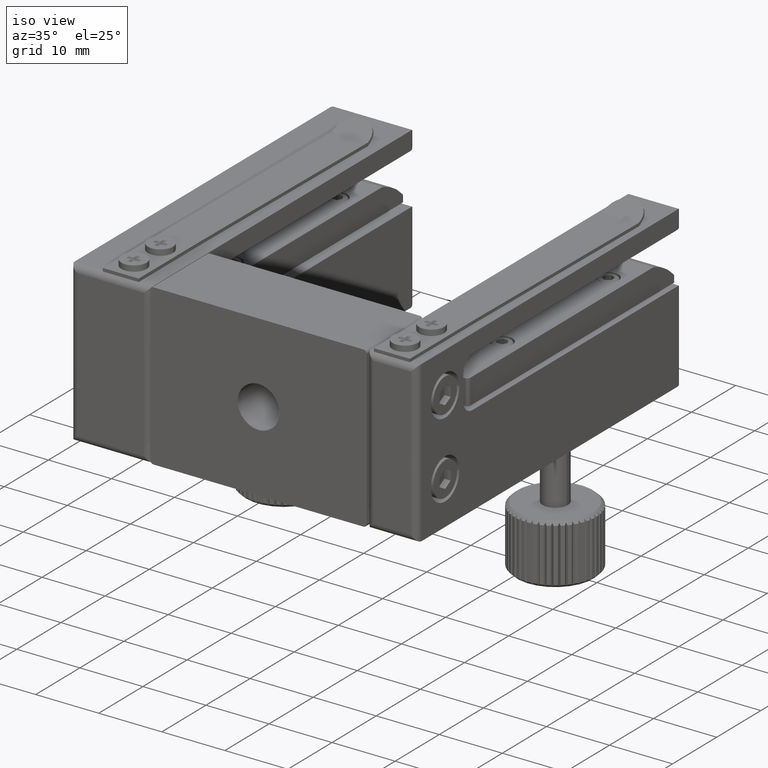
[diagram: clean part render]
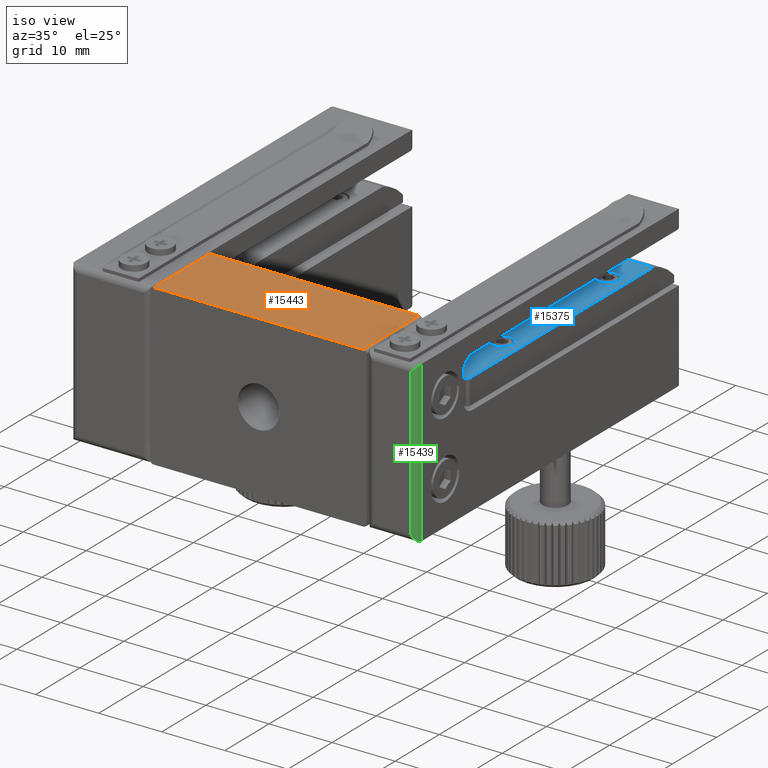
[diagram: same view with three faces highlighted in distinct colors, each labeled with its STEP entity id]
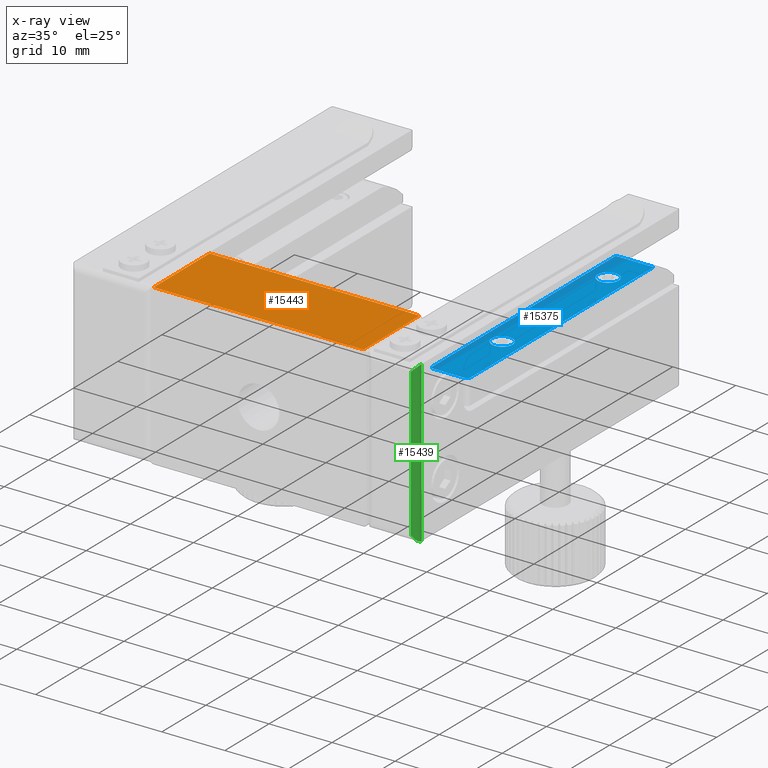
[diagram: x-ray of the same camera — body ghosted, the three highlighted faces saturated]
A machine part, iso view with three faces highlighted in distinct colors.
The next image is the same camera in x-ray (body ghosted, the three faces saturated) — at least one of them is partly hidden behind the body in this view.
Their STEP definitions:

[orange] entity #15443 — the highlighted planar face has unit normal (0, 0, -1).
#2791 = CARTESIAN_POINT ( 'NONE',  ( 10.16750972762645800, -8.836669548926355600, 12.69999999999999900 ) ) ;
#2798 = CARTESIAN_POINT ( 'NONE',  ( -23.13249027237353800, -8.836669548926355600, 12.69999999999999900 ) ) ;
#2803 = CARTESIAN_POINT ( 'NONE',  ( 10.16750972762645800, 3.863330451073643700, 12.69999999999999900 ) ) ;
#2805 = CARTESIAN_POINT ( 'NONE',  ( -23.13249027237353800, 3.863330451073643700, 12.69999999999999900 ) ) ;
#4847 = CARTESIAN_POINT ( 'NONE',  ( -23.13249027237353800, 3.863330451073643700, 12.69999999999999900 ) ) ;
#4851 = CARTESIAN_POINT ( 'NONE',  ( 10.16750972762645800, 3.863330451073643700, 12.69999999999999900 ) ) ;
#4855 = DIRECTION ( 'NONE',  ( 1.000000000000000000, 0.0000000000000000000, 0.0000000000000000000 ) ) ;
#4856 = DIRECTION ( 'NONE',  ( -0.0000000000000000000, -1.000000000000000000, -0.0000000000000000000 ) ) ;
#4992 = LINE ( 'NONE', #4847, #4994 ) ;
#4994 = VECTOR ( 'NONE', #4855, 1000.000000000000000 ) ;
#4995 = LINE ( 'NONE', #4851, #4996 ) ;
#4996 = VECTOR ( 'NONE', #4856, 1000.000000000000000 ) ;
#5771 = LINE ( 'NONE', #8079, #5778 ) ;
#5777 = FACE_OUTER_BOUND ( 'NONE', #12779, .T. ) ;
#5778 = VECTOR ( 'NONE', #8080, 1000.000000000000000 ) ;
#5783 = LINE ( 'NONE', #8078, #5785 ) ;
#5785 = VECTOR ( 'NONE', #8077, 1000.000000000000000 ) ;
#8066 = CARTESIAN_POINT ( 'NONE',  ( -23.13249027237353800, 3.863330451073643700, 12.69999999999999900 ) ) ;
#8071 = PLANE ( 'NONE',  #8426 ) ;
#8073 = DIRECTION ( 'NONE',  ( 0.0000000000000000000, 0.0000000000000000000, -1.000000000000000000 ) ) ;
#8074 = DIRECTION ( 'NONE',  ( -1.000000000000000000, 0.0000000000000000000, -0.0000000000000000000 ) ) ;
#8077 = DIRECTION ( 'NONE',  ( 1.000000000000000000, 0.0000000000000000000, 0.0000000000000000000 ) ) ;
#8078 = CARTESIAN_POINT ( 'NONE',  ( -23.13249027237353800, -8.836669548926355600, 12.69999999999999900 ) ) ;
#8079 = CARTESIAN_POINT ( 'NONE',  ( -23.13249027237353800, 3.863330451073643700, 12.69999999999999900 ) ) ;
#8080 = DIRECTION ( 'NONE',  ( -0.0000000000000000000, -1.000000000000000000, -0.0000000000000000000 ) ) ;
#8426 = AXIS2_PLACEMENT_3D ( 'NONE', #8066, #8073, #8074 ) ;
#9598 = ORIENTED_EDGE ( 'NONE', *, *, #15447, .T. ) ;
#9599 = ORIENTED_EDGE ( 'NONE', *, *, #14852, .F. ) ;
#9600 = ORIENTED_EDGE ( 'NONE', *, *, #14850, .F. ) ;
#9601 = ORIENTED_EDGE ( 'NONE', *, *, #15445, .T. ) ;
#12779 = EDGE_LOOP ( 'NONE', ( #9598, #9599, #9600, #9601 ) ) ;
#13306 = VERTEX_POINT ( 'NONE', #2791 ) ;
#13313 = VERTEX_POINT ( 'NONE', #2798 ) ;
#13318 = VERTEX_POINT ( 'NONE', #2803 ) ;
#13320 = VERTEX_POINT ( 'NONE', #2805 ) ;
#14850 = EDGE_CURVE ( 'NONE', #13320, #13318, #4992, .T. ) ;
#14852 = EDGE_CURVE ( 'NONE', #13318, #13306, #4995, .T. ) ;
#15443 = ADVANCED_FACE ( 'NONE', ( #5777 ), #8071, .F. ) ;
#15445 = EDGE_CURVE ( 'NONE', #13320, #13313, #5771, .T. ) ;
#15447 = EDGE_CURVE ( 'NONE', #13313, #13306, #5783, .T. ) ;

[blue] entity #15375 — the highlighted planar face has unit normal (-0, -0, -1).
#2842 = CARTESIAN_POINT ( 'NONE',  ( 17.66750972762645600, 4.663330451073644400, 5.499999999999991100 ) ) ;
#2850 = CARTESIAN_POINT ( 'NONE',  ( 17.66750972762645600, 46.16333045107364100, 5.499999999999986700 ) ) ;
#2855 = CARTESIAN_POINT ( 'NONE',  ( 11.66750972762645800, 46.16333045107364100, 5.499999999999986700 ) ) ;
#2862 = CARTESIAN_POINT ( 'NONE',  ( 11.66750972762645800, 4.663330451073644400, 5.499999999999991100 ) ) ;
#2863 = CARTESIAN_POINT ( 'NONE',  ( 17.16750972762645600, 4.163330451073643500, 5.499999999999991100 ) ) ;
#2864 = CARTESIAN_POINT ( 'NONE',  ( 12.16750972762645800, 4.163330451073643500, 5.499999999999991100 ) ) ;
#5646 = FACE_OUTER_BOUND ( 'NONE', #12915, .T. ) ;
#5647 = FACE_BOUND ( 'NONE', #12912, .T. ) ;
#5652 = FACE_BOUND ( 'NONE', #12893, .T. ) ;
#5848 = VERTEX_POINT ( 'NONE', #9432 ) ;
#5853 = VERTEX_POINT ( 'NONE', #9359 ) ;
#7827 = DIRECTION ( 'NONE',  ( -0.0000000000000000000, -1.110223024625156500E-016, -1.000000000000000000 ) ) ;
#7828 = CARTESIAN_POINT ( 'NONE',  ( 12.16750972762645800, 4.663330451073644400, 5.499999999999991100 ) ) ;
#7830 = PLANE ( 'NONE',  #8357 ) ;
#7832 = DIRECTION ( 'NONE',  ( -1.000000000000000000, 0.0000000000000000000, 0.0000000000000000000 ) ) ;
#8357 = AXIS2_PLACEMENT_3D ( 'NONE', #7828, #7827, #7832 ) ;
#8480 = EDGE_CURVE ( 'NONE', #13365, #13370, #10091, .T. ) ;
#8489 = EDGE_CURVE ( 'NONE', #13365, #13357, #10100, .T. ) ;
#8492 = EDGE_CURVE ( 'NONE', #13357, #13378, #10112, .T. ) ;
#8495 = EDGE_CURVE ( 'NONE', #13378, #13379, #10117, .T. ) ;
#8498 = EDGE_CURVE ( 'NONE', #13379, #13377, #10122, .T. ) ;
#8502 = EDGE_CURVE ( 'NONE', #5853, #5853, #10130, .T. ) ;
#8508 = EDGE_CURVE ( 'NONE', #5848, #5848, #10133, .T. ) ;
#8509 = EDGE_CURVE ( 'NONE', #13377, #13370, #10138, .T. ) ;
#9359 = CARTESIAN_POINT ( 'NONE',  ( 13.01750972762645900, 40.16333045107364800, 5.499999999999986700 ) ) ;
#9432 = CARTESIAN_POINT ( 'NONE',  ( 13.01750972762645900, 16.16333045107364400, 5.499999999999989300 ) ) ;
#10091 = LINE ( 'NONE', #11016, #10098 ) ;
#10098 = VECTOR ( 'NONE', #11038, 1000.000000000000000 ) ;
#10100 = LINE ( 'NONE', #11072, #10109 ) ;
#10109 = VECTOR ( 'NONE', #11067, 1000.000000000000000 ) ;
#10112 = CIRCLE ( 'NONE', #15730, 0.5000000000000004400 ) ;
#10117 = LINE ( 'NONE', #11084, #10119 ) ;
#10119 = VECTOR ( 'NONE', #11080, 1000.000000000000000 ) ;
#10122 = CIRCLE ( 'NONE', #15732, 0.5000000000000004400 ) ;
#10130 = CIRCLE ( 'NONE', #15735, 1.649999999999998600 ) ;
#10133 = CIRCLE ( 'NONE', #15739, 1.649999999999998600 ) ;
#10138 = LINE ( 'NONE', #11117, #10140 ) ;
#10140 = VECTOR ( 'NONE', #11124, 1000.000000000000000 ) ;
#11016 = CARTESIAN_POINT ( 'NONE',  ( 24.36750972762645500, 46.16333045107364100, 5.499999999999986700 ) ) ;
#11038 = DIRECTION ( 'NONE',  ( -1.000000000000000000, 0.0000000000000000000, 0.0000000000000000000 ) ) ;
#11067 = DIRECTION ( 'NONE',  ( 0.0000000000000000000, -1.000000000000000000, 1.110223024625156500E-016 ) ) ;
#11072 = CARTESIAN_POINT ( 'NONE',  ( 17.66750972762645600, 4.663330451073644400, 5.499999999999991100 ) ) ;
#11080 = DIRECTION ( 'NONE',  ( -1.000000000000000000, 0.0000000000000000000, 0.0000000000000000000 ) ) ;
#11081 = CARTESIAN_POINT ( 'NONE',  ( 17.16750972762645600, 4.663330451073644400, 5.499999999999991100 ) ) ;
#11082 = DIRECTION ( 'NONE',  ( 0.0000000000000000000, -1.110223024625156500E-016, -1.000000000000000000 ) ) ;
#11083 = DIRECTION ( 'NONE',  ( -1.000000000000000000, 0.0000000000000000000, 0.0000000000000000000 ) ) ;
#11084 = CARTESIAN_POINT ( 'NONE',  ( 12.16750972762645800, 4.163330451073643500, 5.499999999999991100 ) ) ;
#11094 = CARTESIAN_POINT ( 'NONE',  ( 12.16750972762645800, 4.663330451073644400, 5.499999999999991100 ) ) ;
#11095 = DIRECTION ( 'NONE',  ( 0.0000000000000000000, -1.110223024625156500E-016, -1.000000000000000000 ) ) ;
#11096 = DIRECTION ( 'NONE',  ( -1.000000000000000000, 0.0000000000000000000, 0.0000000000000000000 ) ) ;
#11104 = CARTESIAN_POINT ( 'NONE',  ( 14.66750972762645800, 40.16333045107364800, 5.499999999999986700 ) ) ;
#11105 = DIRECTION ( 'NONE',  ( 0.0000000000000000000, -1.110223024625156500E-016, -1.000000000000000000 ) ) ;
#11106 = DIRECTION ( 'NONE',  ( -1.000000000000000000, 0.0000000000000000000, 0.0000000000000000000 ) ) ;
#11117 = CARTESIAN_POINT ( 'NONE',  ( 11.66750972762645800, 4.663330451073644400, 5.499999999999991100 ) ) ;
#11121 = CARTESIAN_POINT ( 'NONE',  ( 14.66750972762645800, 16.16333045107364400, 5.499999999999989300 ) ) ;
#11122 = DIRECTION ( 'NONE',  ( 0.0000000000000000000, -1.110223024625156500E-016, -1.000000000000000000 ) ) ;
#11123 = DIRECTION ( 'NONE',  ( -1.000000000000000000, 0.0000000000000000000, 0.0000000000000000000 ) ) ;
#11124 = DIRECTION ( 'NONE',  ( 0.0000000000000000000, 1.000000000000000000, -1.110223024625156500E-016 ) ) ;
#12893 = EDGE_LOOP ( 'NONE', ( #16182 ) ) ;
#12912 = EDGE_LOOP ( 'NONE', ( #16181 ) ) ;
#12915 = EDGE_LOOP ( 'NONE', ( #16183, #16184, #16185, #16186, #16187, #16188 ) ) ;
#13357 = VERTEX_POINT ( 'NONE', #2842 ) ;
#13365 = VERTEX_POINT ( 'NONE', #2850 ) ;
#13370 = VERTEX_POINT ( 'NONE', #2855 ) ;
#13377 = VERTEX_POINT ( 'NONE', #2862 ) ;
#13378 = VERTEX_POINT ( 'NONE', #2863 ) ;
#13379 = VERTEX_POINT ( 'NONE', #2864 ) ;
#15375 = ADVANCED_FACE ( 'NONE', ( #5647, #5652, #5646 ), #7830, .F. ) ;
#15730 = AXIS2_PLACEMENT_3D ( 'NONE', #11081, #11082, #11083 ) ;
#15732 = AXIS2_PLACEMENT_3D ( 'NONE', #11094, #11095, #11096 ) ;
#15735 = AXIS2_PLACEMENT_3D ( 'NONE', #11104, #11105, #11106 ) ;
#15739 = AXIS2_PLACEMENT_3D ( 'NONE', #11121, #11122, #11123 ) ;
#16181 = ORIENTED_EDGE ( 'NONE', *, *, #8508, .T. ) ;
#16182 = ORIENTED_EDGE ( 'NONE', *, *, #8502, .T. ) ;
#16183 = ORIENTED_EDGE ( 'NONE', *, *, #8489, .F. ) ;
#16184 = ORIENTED_EDGE ( 'NONE', *, *, #8480, .T. ) ;
#16185 = ORIENTED_EDGE ( 'NONE', *, *, #8509, .F. ) ;
#16186 = ORIENTED_EDGE ( 'NONE', *, *, #8498, .F. ) ;
#16187 = ORIENTED_EDGE ( 'NONE', *, *, #8495, .F. ) ;
#16188 = ORIENTED_EDGE ( 'NONE', *, *, #8492, .F. ) ;

[green] entity #15439 — the highlighted cylindrical surface (edge-blend (fillet) strip) has radius 1 mm, axis along (0, -0, -1).
#2767 = CARTESIAN_POINT ( 'NONE',  ( 18.66750972762645900, -7.836669548926349400, -12.90000000000000200 ) ) ;
#2770 = CARTESIAN_POINT ( 'NONE',  ( 17.66750972762645600, -8.836669548926357400, 11.49999999999998900 ) ) ;
#2772 = CARTESIAN_POINT ( 'NONE',  ( 18.66750972762645900, -7.836669548926349400, 12.49999999999999600 ) ) ;
#2776 = CARTESIAN_POINT ( 'NONE',  ( 17.66750972762645600, -8.836669548926357400, -11.89999999999999300 ) ) ;
#4462 =( BOUNDED_CURVE ( )  B_SPLINE_CURVE ( 3, ( #6501, #6500, #6508, #6509 ),
 .UNSPECIFIED., .F., .F. ) 
 B_SPLINE_CURVE_WITH_KNOTS ( ( 4, 4 ),
 ( 0.0000000000000000000, 1.570796326794900100 ),
 .UNSPECIFIED. ) 
 CURVE ( )  GEOMETRIC_REPRESENTATION_ITEM ( )  RATIONAL_B_SPLINE_CURVE ( ( 1.000000000000000000, 0.8047378541243641600, 0.8047378541243641600, 1.000000000000000000 ) ) 
 REPRESENTATION_ITEM ( '' )  );
#4463 =( BOUNDED_CURVE ( )  B_SPLINE_CURVE ( 3, ( #6507, #6506, #6514, #6515 ),
 .UNSPECIFIED., .F., .F. ) 
 B_SPLINE_CURVE_WITH_KNOTS ( ( 4, 4 ),
 ( 1.570796326794893000, 3.141592653589799800 ),
 .UNSPECIFIED. ) 
 CURVE ( )  GEOMETRIC_REPRESENTATION_ITEM ( )  RATIONAL_B_SPLINE_CURVE ( ( 1.000000000000000000, 0.8047378541243626100, 0.8047378541243626100, 1.000000000000000000 ) ) 
 REPRESENTATION_ITEM ( '' )  );
#5205 = LINE ( 'NONE', #6516, #5207 ) ;
#5207 = VECTOR ( 'NONE', #6517, 1000.000000000000000 ) ;
#5208 = LINE ( 'NONE', #6513, #5210 ) ;
#5210 = VECTOR ( 'NONE', #6512, 1000.000000000000000 ) ;
#5770 = FACE_OUTER_BOUND ( 'NONE', #12840, .T. ) ;
#5774 = CYLINDRICAL_SURFACE ( 'NONE', #8422, 1.000000000000000900 ) ;
#6500 = CARTESIAN_POINT ( 'NONE',  ( 18.66750972762645900, -8.422455986553263300, -12.90000000000000200 ) ) ;
#6501 = CARTESIAN_POINT ( 'NONE',  ( 18.66750972762645900, -7.836669548926349400, -12.90000000000000200 ) ) ;
#6506 = CARTESIAN_POINT ( 'NONE',  ( 18.25329616525336000, -8.836669548926357400, 12.08578643762690200 ) ) ;
#6507 = CARTESIAN_POINT ( 'NONE',  ( 17.66750972762645600, -8.836669548926357400, 11.49999999999998900 ) ) ;
#6508 = CARTESIAN_POINT ( 'NONE',  ( 18.25329616525336400, -8.836669548926359100, -12.48578643762690300 ) ) ;
#6509 = CARTESIAN_POINT ( 'NONE',  ( 17.66750972762645600, -8.836669548926357400, -11.89999999999999300 ) ) ;
#6512 = DIRECTION ( 'NONE',  ( -0.0000000000000000000, 1.110223024625156500E-016, 1.000000000000000000 ) ) ;
#6513 = CARTESIAN_POINT ( 'NONE',  ( 17.66750972762645600, -8.836669548926357400, -11.89999999999999300 ) ) ;
#6514 = CARTESIAN_POINT ( 'NONE',  ( 18.66750972762646300, -8.422455986553259800, 12.50000000000000200 ) ) ;
#6515 = CARTESIAN_POINT ( 'NONE',  ( 18.66750972762645900, -7.836669548926349400, 12.49999999999999600 ) ) ;
#6516 = CARTESIAN_POINT ( 'NONE',  ( 18.66750972762645900, -7.836669548926356500, 11.49999999999999600 ) ) ;
#6517 = DIRECTION ( 'NONE',  ( 0.0000000000000000000, -1.110223024625156500E-016, -1.000000000000000000 ) ) ;
#8053 = DIRECTION ( 'NONE',  ( -1.000000000000000000, 0.0000000000000000000, 0.0000000000000000000 ) ) ;
#8058 = DIRECTION ( 'NONE',  ( 0.0000000000000000000, -1.110223024625156500E-016, -1.000000000000000000 ) ) ;
#8060 = CARTESIAN_POINT ( 'NONE',  ( 17.66750972762645600, -7.836669548926356500, 11.49999999999999600 ) ) ;
#8422 = AXIS2_PLACEMENT_3D ( 'NONE', #8060, #8058, #8053 ) ;
#12840 = EDGE_LOOP ( 'NONE', ( #16308, #16309, #16310, #16311 ) ) ;
#13282 = VERTEX_POINT ( 'NONE', #2767 ) ;
#13285 = VERTEX_POINT ( 'NONE', #2770 ) ;
#13287 = VERTEX_POINT ( 'NONE', #2772 ) ;
#13291 = VERTEX_POINT ( 'NONE', #2776 ) ;
#15067 = EDGE_CURVE ( 'NONE', #13282, #13291, #4462, .T. ) ;
#15069 = EDGE_CURVE ( 'NONE', #13285, #13287, #4463, .T. ) ;
#15070 = EDGE_CURVE ( 'NONE', #13287, #13282, #5205, .T. ) ;
#15072 = EDGE_CURVE ( 'NONE', #13291, #13285, #5208, .T. ) ;
#15439 = ADVANCED_FACE ( 'NONE', ( #5770 ), #5774, .T. ) ;
#16308 = ORIENTED_EDGE ( 'NONE', *, *, #15069, .F. ) ;
#16309 = ORIENTED_EDGE ( 'NONE', *, *, #15072, .F. ) ;
#16310 = ORIENTED_EDGE ( 'NONE', *, *, #15067, .F. ) ;
#16311 = ORIENTED_EDGE ( 'NONE', *, *, #15070, .F. ) ;